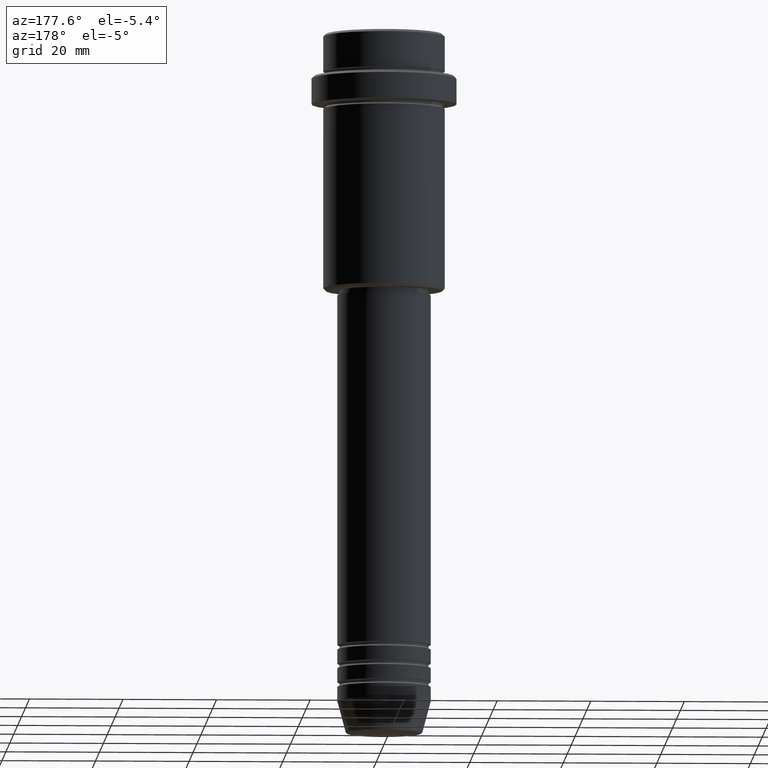
[diagram: clean part render]
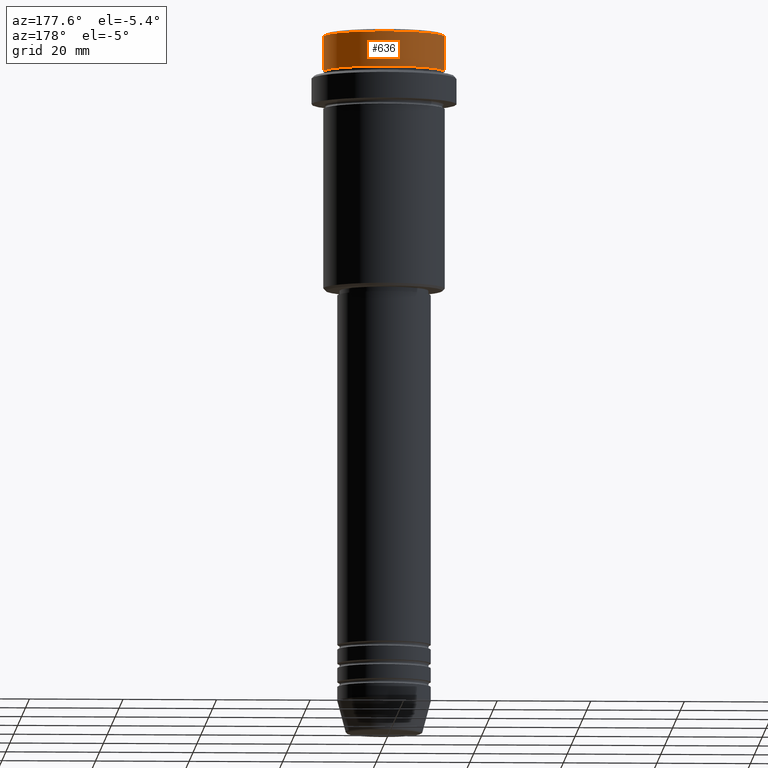
[diagram: same view with one face highlighted and labeled with its STEP entity id]
A machine part, auxiliary view. The second image highlights one B-rep face of the part: STEP entity #636.
In plain terms, the highlighted cylindrical surface (partial cylindrical patch) has radius 13 mm, axis along (-0, -0, 1).
Its self-contained STEP definition (entity closure, byte-faithful):
#11 = CARTESIAN_POINT ( 'NONE',  ( -12.99999999999999822, 1.592040838891558898E-15, 0.000000000000000000 ) ) ;
#13 = AXIS2_PLACEMENT_3D ( 'NONE', #64, #1153, #1273 ) ;
#16 = LINE ( 'NONE', #408, #835 ) ;
#17 = DIRECTION ( 'NONE',  ( -0.000000000000000000, -0.000000000000000000, 1.000000000000000000 ) ) ;
#55 = VERTEX_POINT ( 'NONE', #731 ) ;
#64 = CARTESIAN_POINT ( 'NONE',  ( 0.000000000000000000, 0.000000000000000000, -0.4999999999999622524 ) ) ;
#102 = DIRECTION ( 'NONE',  ( -0.000000000000000000, -0.000000000000000000, 1.000000000000000000 ) ) ;
#143 = VERTEX_POINT ( 'NONE', #768 ) ;
#243 = ORIENTED_EDGE ( 'NONE', *, *, #917, .T. ) ;
#288 = EDGE_CURVE ( 'NONE', #143, #55, #1091, .T. ) ;
#384 = VERTEX_POINT ( 'NONE', #608 ) ;
#400 = CARTESIAN_POINT ( 'NONE',  ( 0.000000000000000000, 0.000000000000000000, -7.999999999999998224 ) ) ;
#408 = CARTESIAN_POINT ( 'NONE',  ( 12.99999999999999822, 0.000000000000000000, 0.000000000000000000 ) ) ;
#608 = CARTESIAN_POINT ( 'NONE',  ( 12.99999999999999822, 0.000000000000000000, -0.4999999999999622524 ) ) ;
#614 = ORIENTED_EDGE ( 'NONE', *, *, #924, .T. ) ;
#636 = ADVANCED_FACE ( 'NONE', ( #1020 ), #1191, .T. ) ;
#652 = EDGE_LOOP ( 'NONE', ( #243, #1090, #614, #1154 ) ) ;
#731 = CARTESIAN_POINT ( 'NONE',  ( -12.99999999999999822, 1.592040838891558898E-15, -0.4999999999999622524 ) ) ;
#768 = CARTESIAN_POINT ( 'NONE',  ( -12.99999999999999822, 1.592040838891558898E-15, -7.999999999999998224 ) ) ;
#835 = VECTOR ( 'NONE', #954, 1000.000000000000000 ) ;
#887 = CARTESIAN_POINT ( 'NONE',  ( 0.000000000000000000, 0.000000000000000000, 0.000000000000000000 ) ) ;
#917 = EDGE_CURVE ( 'NONE', #1133, #143, #950, .T. ) ;
#924 = EDGE_CURVE ( 'NONE', #55, #384, #1162, .T. ) ;
#950 = CIRCLE ( 'NONE', #1035, 12.99999999999999822 ) ;
#954 = DIRECTION ( 'NONE',  ( -0.000000000000000000, -0.000000000000000000, 1.000000000000000000 ) ) ;
#967 = DIRECTION ( 'NONE',  ( -0.000000000000000000, -0.000000000000000000, 1.000000000000000000 ) ) ;
#1020 = FACE_OUTER_BOUND ( 'NONE', #652, .T. ) ;
#1035 = AXIS2_PLACEMENT_3D ( 'NONE', #400, #967, #1285 ) ;
#1076 = AXIS2_PLACEMENT_3D ( 'NONE', #887, #17, #1404 ) ;
#1090 = ORIENTED_EDGE ( 'NONE', *, *, #288, .T. ) ;
#1091 = LINE ( 'NONE', #11, #1097 ) ;
#1097 = VECTOR ( 'NONE', #102, 1000.000000000000000 ) ;
#1133 = VERTEX_POINT ( 'NONE', #1185 ) ;
#1153 = DIRECTION ( 'NONE',  ( 0.000000000000000000, 0.000000000000000000, -1.000000000000000000 ) ) ;
#1154 = ORIENTED_EDGE ( 'NONE', *, *, #1281, .F. ) ;
#1162 = CIRCLE ( 'NONE', #13, 12.99999999999999822 ) ;
#1185 = CARTESIAN_POINT ( 'NONE',  ( 12.99999999999999822, 0.000000000000000000, -7.999999999999998224 ) ) ;
#1191 = CYLINDRICAL_SURFACE ( 'NONE', #1076, 12.99999999999999822 ) ;
#1273 = DIRECTION ( 'NONE',  ( 1.000000000000000000, 0.000000000000000000, 0.000000000000000000 ) ) ;
#1281 = EDGE_CURVE ( 'NONE', #1133, #384, #16, .T. ) ;
#1285 = DIRECTION ( 'NONE',  ( 1.000000000000000000, 0.000000000000000000, 0.000000000000000000 ) ) ;
#1404 = DIRECTION ( 'NONE',  ( 1.000000000000000000, 0.000000000000000000, 0.000000000000000000 ) ) ;